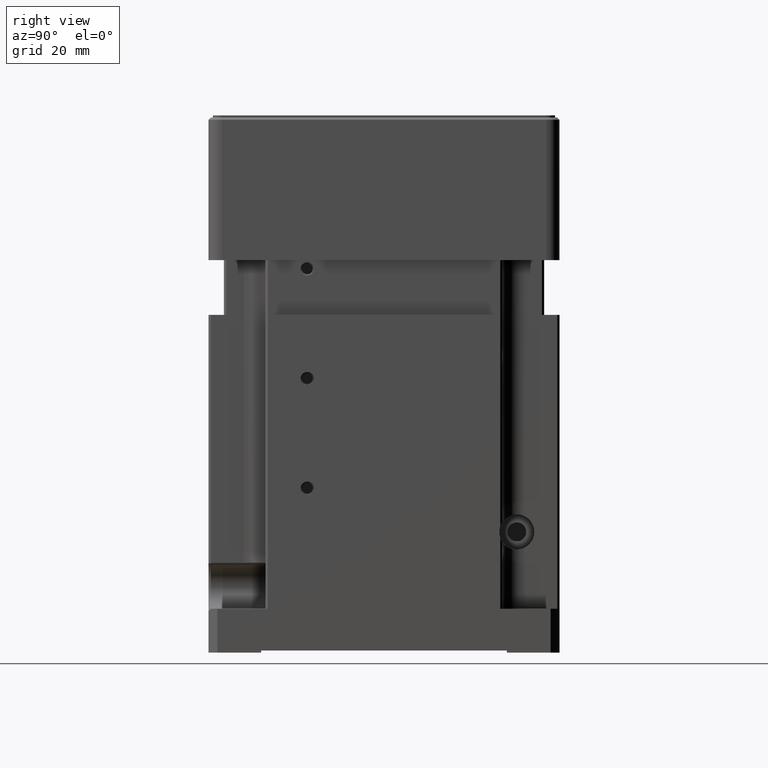
[diagram: clean part render]
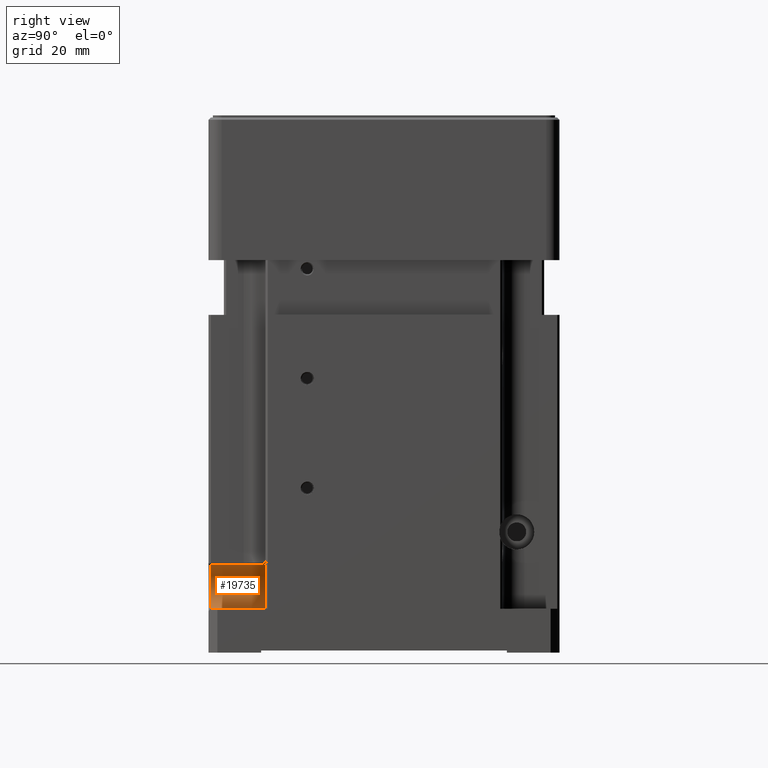
[diagram: same view with one face highlighted and labeled with its STEP entity id]
A machine part, right view. The second image highlights one B-rep face of the part: STEP entity #19735.
In plain terms, the highlighted cylindrical surface (edge-blend (fillet) strip) has radius 5 mm, axis along (0, -1, 0).
Its self-contained STEP definition (entity closure, byte-faithful):
#322 = VECTOR ( 'NONE', #34512, 1000.000000000000000 ) ;
#632 = CARTESIAN_POINT ( 'NONE',  ( 27.00000000000000000, -27.00000000000000000, 10.00000000000000000 ) ) ;
#2020 = FACE_OUTER_BOUND ( 'NONE', #18395, .T. ) ;
#2073 = CARTESIAN_POINT ( 'NONE',  ( 27.00000009120384803, -31.16662125324333488, 3.740684999362181631E-20 ) ) ;
#2890 = ORIENTED_EDGE ( 'NONE', *, *, #8487, .F. ) ;
#2915 = CIRCLE ( 'NONE', #24384, 5.000000000000000000 ) ;
#3308 = ORIENTED_EDGE ( 'NONE', *, *, #14810, .F. ) ;
#4304 = CIRCLE ( 'NONE', #14707, 5.000000000000000000 ) ;
#5106 = DIRECTION ( 'NONE',  ( 0.000000000000000000, 0.000000000000000000, 1.000000000000000000 ) ) ;
#8341 = B_SPLINE_CURVE_WITH_KNOTS ( 'NONE', 3,
 ( #36473, #13603, #2073, #22418 ),
 .UNSPECIFIED., .F., .F.,
 ( 4, 4 ),
 ( 0.000000000000000000, 1.000000000000000000 ),
 .UNSPECIFIED. ) ;
#8487 = EDGE_CURVE ( 'NONE', #32506, #37773, #2915, .T. ) ;
#8721 = CARTESIAN_POINT ( 'NONE',  ( 26.54545454558000017, -31.99999983867999376, 9.979295977027998532 ) ) ;
#8879 = ORIENTED_EDGE ( 'NONE', *, *, #13875, .T. ) ;
#9042 = CARTESIAN_POINT ( 'NONE',  ( 26.54545454544999927, -39.50000000000000000, 9.979295977319999622 ) ) ;
#9320 = B_SPLINE_CURVE_WITH_KNOTS ( 'NONE', 3,
 ( #25730, #28044, #36877, #17081 ),
 .UNSPECIFIED., .F., .F.,
 ( 4, 4 ),
 ( 0.000000000000000000, 1.000000000000000000 ),
 .UNSPECIFIED. ) ;
#10810 = CARTESIAN_POINT ( 'NONE',  ( 27.00000000000000000, -29.70871215251999686, 10.00000000000000000 ) ) ;
#11463 = LINE ( 'NONE', #17620, #322 ) ;
#12600 = CARTESIAN_POINT ( 'NONE',  ( 27.00000000000000000, -39.50000000000000000, 5.000000000000000000 ) ) ;
#12718 = EDGE_CURVE ( 'NONE', #23017, #27391, #11463, .T. ) ;
#13603 = CARTESIAN_POINT ( 'NONE',  ( 27.00000018240565325, -35.33324250648666265, 1.948195482753464567E-15 ) ) ;
#13875 = EDGE_CURVE ( 'NONE', #19138, #37773, #8341, .T. ) ;
#14110 = CARTESIAN_POINT ( 'NONE',  ( 27.00000000000000000, -40.00000000000000000, 5.000000000000000000 ) ) ;
#14291 = CYLINDRICAL_SURFACE ( 'NONE', #24434, 5.000000000000000888 ) ;
#14549 = CARTESIAN_POINT ( 'NONE',  ( 27.00000000000000000, -27.00000000000000000, 0.000000000000000000 ) ) ;
#14707 = AXIS2_PLACEMENT_3D ( 'NONE', #12600, #18179, #24508 ) ;
#14810 = EDGE_CURVE ( 'NONE', #27391, #29180, #23391, .T. ) ;
#16501 = EDGE_CURVE ( 'NONE', #29180, #32506, #9320, .T. ) ;
#17041 = ORIENTED_EDGE ( 'NONE', *, *, #12718, .F. ) ;
#17081 = CARTESIAN_POINT ( 'NONE',  ( 27.00000000000000000, -27.00000000000000000, 10.00000000000000000 ) ) ;
#17620 = CARTESIAN_POINT ( 'NONE',  ( 26.54545454544999927, -39.50000000000000000, 9.979295977319999622 ) ) ;
#18179 = DIRECTION ( 'NONE',  ( 0.000000000000000000, 1.000000000000000000, 0.000000000000000000 ) ) ;
#18204 = CARTESIAN_POINT ( 'NONE',  ( 27.00000027360000132, -39.49986375972999753, 0.0001362402748190000052 ) ) ;
#18395 = EDGE_LOOP ( 'NONE', ( #17041, #37233, #8879, #2890, #26810, #3308 ) ) ;
#19138 = VERTEX_POINT ( 'NONE', #18204 ) ;
#19653 = CARTESIAN_POINT ( 'NONE',  ( 26.54545454558000017, -31.99999983867999376, 9.979295977027998532 ) ) ;
#19735 = ADVANCED_FACE ( 'NONE', ( #2020 ), #14291, .F. ) ;
#19866 = DIRECTION ( 'NONE',  ( 0.000000000000000000, -1.000000000000000000, 0.000000000000000000 ) ) ;
#22418 = CARTESIAN_POINT ( 'NONE',  ( 27.00000000000000000, -27.00000000000000000, 0.000000000000000000 ) ) ;
#23017 = VERTEX_POINT ( 'NONE', #9042 ) ;
#23391 = B_SPLINE_CURVE_WITH_KNOTS ( 'NONE', 3,
 ( #19653, #34430, #28312, #10810 ),
 .UNSPECIFIED., .F., .F.,
 ( 4, 4 ),
 ( 0.000000000000000000, 1.000000000000000000 ),
 .UNSPECIFIED. ) ;
#24384 = AXIS2_PLACEMENT_3D ( 'NONE', #37165, #33918, #5106 ) ;
#24434 = AXIS2_PLACEMENT_3D ( 'NONE', #14110, #19866, #31596 ) ;
#24508 = DIRECTION ( 'NONE',  ( 0.000000000000000000, 0.000000000000000000, -1.000000000000000000 ) ) ;
#25730 = CARTESIAN_POINT ( 'NONE',  ( 27.00000000000000000, -29.70871215251999686, 10.00000000000000000 ) ) ;
#26810 = ORIENTED_EDGE ( 'NONE', *, *, #16501, .F. ) ;
#27391 = VERTEX_POINT ( 'NONE', #8721 ) ;
#28044 = CARTESIAN_POINT ( 'NONE',  ( 26.99997258430148150, -28.80580810076366660, 10.00000000000000000 ) ) ;
#28312 = CARTESIAN_POINT ( 'NONE',  ( 26.69886162500937843, -30.43316117322257597, 9.998517852112874138 ) ) ;
#28423 = EDGE_CURVE ( 'NONE', #19138, #23017, #4304, .T. ) ;
#29180 = VERTEX_POINT ( 'NONE', #32293 ) ;
#31596 = DIRECTION ( 'NONE',  ( 1.000000000000000000, 0.000000000000000000, 0.000000000000000000 ) ) ;
#32293 = CARTESIAN_POINT ( 'NONE',  ( 27.00000000000000000, -29.70871215251999686, 10.00000000000000000 ) ) ;
#32506 = VERTEX_POINT ( 'NONE', #632 ) ;
#33918 = DIRECTION ( 'NONE',  ( 0.000000000000000000, -1.000000000000000000, 0.000000000000000000 ) ) ;
#34430 = CARTESIAN_POINT ( 'NONE',  ( 26.54605841903062924, -31.20782771992628568, 9.977850419859958464 ) ) ;
#34512 = DIRECTION ( 'NONE',  ( 1.676643972750999842E-11, 1.000000000000000000, -3.884442313816000247E-11 ) ) ;
#36473 = CARTESIAN_POINT ( 'NONE',  ( 27.00000027360000132, -39.49986375972999753, 0.0001362402748190000052 ) ) ;
#36877 = CARTESIAN_POINT ( 'NONE',  ( 26.99998629215260593, -27.90290405038183508, 10.00000000000000000 ) ) ;
#37165 = CARTESIAN_POINT ( 'NONE',  ( 27.00000000000000000, -27.00000000000000000, 5.000000000000000000 ) ) ;
#37233 = ORIENTED_EDGE ( 'NONE', *, *, #28423, .F. ) ;
#37773 = VERTEX_POINT ( 'NONE', #14549 ) ;